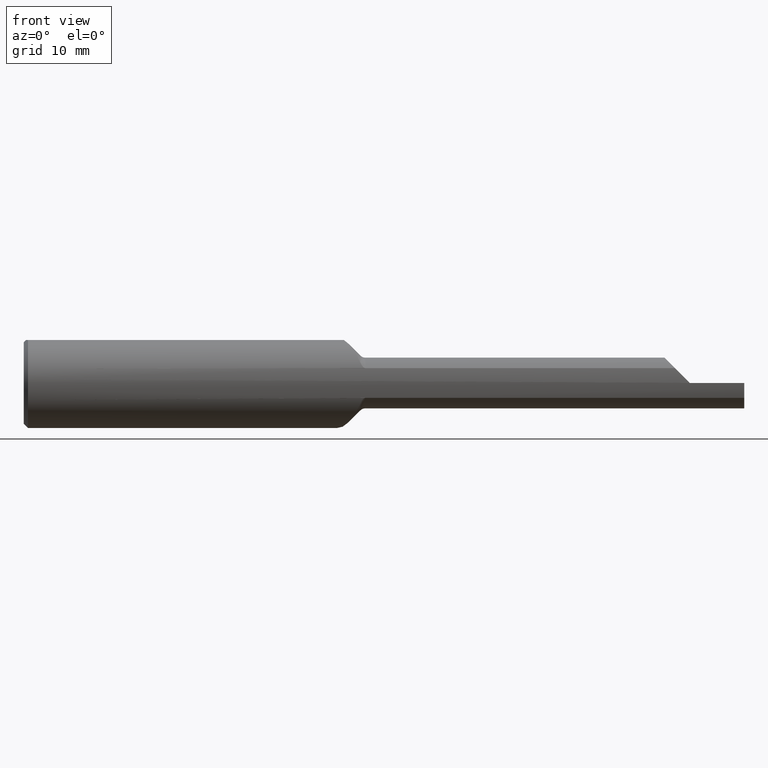
[diagram: clean part render]
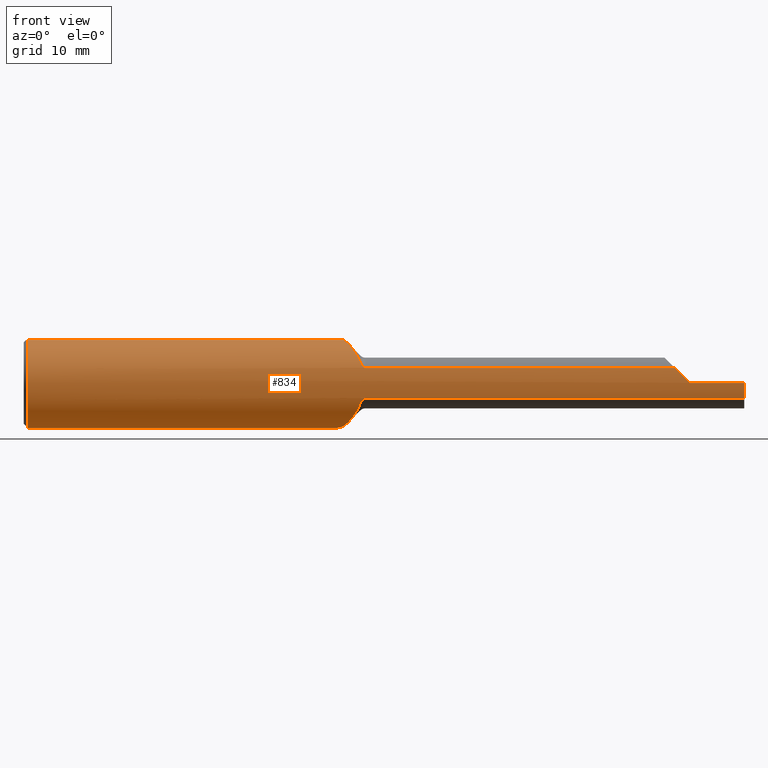
[diagram: same view with one face highlighted and labeled with its STEP entity id]
A machine part, front view. The second image highlights one B-rep face of the part: STEP entity #834.
In plain terms, the highlighted cylindrical surface (partial cylindrical patch) has radius 3.9649 mm, axis along (-1, -0, -0).
Its self-contained STEP definition (entity closure, byte-faithful):
#5 = CARTESIAN_POINT ( 'NONE',  ( 1.044222012668610589, 0.1163179709796762773, -0.1042486718442272170 ) ) ;
#15 = DIRECTION ( 'NONE',  ( 1.000000000000000000, 0.000000000000000000, 0.000000000000000000 ) ) ;
#22 = CARTESIAN_POINT ( 'NONE',  ( 0.01499999999999970281, 0.04622120725381385214, 0.1490999999999999270 ) ) ;
#24 = EDGE_CURVE ( 'NONE', #377, #806, #531, .T. ) ;
#35 = ORIENTED_EDGE ( 'NONE', *, *, #199, .T. ) ;
#46 = ORIENTED_EDGE ( 'NONE', *, *, #808, .F. ) ;
#52 = EDGE_CURVE ( 'NONE', #662, #599, #96, .T. ) ;
#58 = CARTESIAN_POINT ( 'NONE',  ( 1.130329930302383934, -0.08259003961828295659, -0.1326700696976158556 ) ) ;
#69 = CARTESIAN_POINT ( 'NONE',  ( 2.310000000000000053, -0.1560974054877275197, 0.0009000000000000394403 ) ) ;
#71 = CARTESIAN_POINT ( 'NONE',  ( 1.031141773156916353, 0.1550540061005035442, 0.02129797022049672445 ) ) ;
#74 = VECTOR ( 'NONE', #619, 39.37007874015748143 ) ;
#76 = CARTESIAN_POINT ( 'NONE',  ( 1.116812169148769129, -0.05789496149929983237, -0.1453281471598949215 ) ) ;
#88 = CARTESIAN_POINT ( 'NONE',  ( 1.043525812468697689, 0.1182995851173736374, 0.1024596034648371373 ) ) ;
#89 = VERTEX_POINT ( 'NONE', #627 ) ;
#96 = CIRCLE ( 'NONE', #792, 0.1560999999999999888 ) ;
#97 = CARTESIAN_POINT ( 'NONE',  ( 1.799000000000000155, -0.1472695137976348101, -0.05175809410911725444 ) ) ;
#103 = ORIENTED_EDGE ( 'NONE', *, *, #691, .F. ) ;
#104 = ORIENTED_EDGE ( 'NONE', *, *, #147, .F. ) ;
#107 = ORIENTED_EDGE ( 'NONE', *, *, #840, .T. ) ;
#116 = ORIENTED_EDGE ( 'NONE', *, *, #982, .F. ) ;
#124 = CARTESIAN_POINT ( 'NONE',  ( 1.126706199700792999, -0.07609999999999983444, 0.1362938002992066244 ) ) ;
#131 = CARTESIAN_POINT ( 'NONE',  ( 1.167677669529663786, -0.1384498903659923119, -0.07210296705160408604 ) ) ;
#132 = EDGE_LOOP ( 'NONE', ( #103, #915, #107, #388, #719, #752, #870, #116, #46, #35, #561, #622, #383, #104, #426, #488 ) ) ;
#147 = EDGE_CURVE ( 'NONE', #806, #1041, #175, .T. ) ;
#148 = CARTESIAN_POINT ( 'NONE',  ( 1.046899741308043419, 0.1086669464458838996, -0.1122013845914639069 ) ) ;
#150 = CARTESIAN_POINT ( 'NONE',  ( 1.161637665821881882, -0.1307140869438641884, 0.08566718864553422852 ) ) ;
#152 = CARTESIAN_POINT ( 'NONE',  ( 1.048311627111805588, 0.1046679885198928961, -0.1159372447474035089 ) ) ;
#158 = CARTESIAN_POINT ( 'NONE',  ( 1.067010607088304086, 0.05412176561188290769, -0.1467967206887914600 ) ) ;
#160 = CARTESIAN_POINT ( 'NONE',  ( 1.175408687754749826, -0.1449155519252132152, -0.05806097206929419774 ) ) ;
#163 = CARTESIAN_POINT ( 'NONE',  ( 1.070144386278151671, 0.04622120725381387990, 0.1490999999999999270 ) ) ;
#169 = CARTESIAN_POINT ( 'NONE',  ( 1.075032927891207191, 0.03388377653998491529, -0.1527427000066419183 ) ) ;
#175 = B_SPLINE_CURVE_WITH_KNOTS ( 'NONE', 3,
 ( #556, #880, #76, #964, #656, #886, #901, #403, #169, #158, #565, #979, #975, #152, #148, #5, #322, #485, #650, #480, #475, #244, #800, #646, #71, #891, #570, #250, #396, #88, #496, #414, #812, #897, #735, #163 ),
 .UNSPECIFIED., .F., .F.,
 ( 4, 2, 2, 2, 2, 2, 2, 2, 2, 2, 2, 2, 2, 2, 2, 2, 2, 4 ),
 ( 0.003110930994557954254, 0.003973681353903177338, 0.004836431713248399988, 0.005699182072593623506, 0.006561932431938847024, 0.007424682791284069674, 0.008287433150629292325, 0.008718808330301903650, 0.009150183509974514975, 0.01001293386931973936, 0.01087568422866496201, 0.01173843458801018640, 0.01260118494735540905, 0.01346393530670063343, 0.01432668566604585955, 0.01518943602539108220, 0.01605218638473630832, 0.01691493674408153097 ),
 .UNSPECIFIED. ) ;
#188 = CARTESIAN_POINT ( 'NONE',  ( 1.799000000000000155, -0.1472695137976348101, 0.05175809410911725444 ) ) ;
#193 = CYLINDRICAL_SURFACE ( 'NONE', #684, 0.1560999999999999888 ) ;
#199 = EDGE_CURVE ( 'NONE', #948, #595, #747, .T. ) ;
#208 = FACE_OUTER_BOUND ( 'NONE', #132, .T. ) ;
#211 = DIRECTION ( 'NONE',  ( 1.000000000000000000, 0.000000000000000000, 0.000000000000000000 ) ) ;
#214 = CARTESIAN_POINT ( 'NONE',  ( 0.01499999999999970281, 0.000000000000000000, 0.000000000000000000 ) ) ;
#236 = CARTESIAN_POINT ( 'NONE',  ( 1.167677669529664231, -0.1384498903659933666, 0.07210296705160368358 ) ) ;
#243 = CARTESIAN_POINT ( 'NONE',  ( 2.259141905890882374, -0.1472695137976348656, 0.05175809410911717812 ) ) ;
#244 = CARTESIAN_POINT ( 'NONE',  ( 1.031280914347883382, 0.1546295128890213255, -0.02417333993364567668 ) ) ;
#250 = CARTESIAN_POINT ( 'NONE',  ( 1.036986910343659973, 0.1374578401896124347, 0.07482343719080121469 ) ) ;
#253 = CARTESIAN_POINT ( 'NONE',  ( 1.185355339059327440, -0.1472695137976348101, -0.05175809410911725444 ) ) ;
#254 = CARTESIAN_POINT ( 'NONE',  ( 1.171394371802470413, -0.1424943515107292002, 0.06387577345490033642 ) ) ;
#265 = VERTEX_POINT ( 'NONE', #22 ) ;
#268 = CARTESIAN_POINT ( 'NONE',  ( 1.185355339059327440, -0.1472695137976348101, 0.05175809410911725444 ) ) ;
#272 = CARTESIAN_POINT ( 'NONE',  ( 1.182828737658168983, -0.1472695137976347823, 0.05175809410911725444 ) ) ;
#285 = CARTESIAN_POINT ( 'NONE',  ( 1.155216021855614894, -0.1221386240569962700, -0.09836120827692207413 ) ) ;
#288 = LINE ( 'NONE', #529, #453 ) ;
#304 = CARTESIAN_POINT ( 'NONE',  ( 1.180546948345776670, -0.1468138937758310947, -0.05306286877905338345 ) ) ;
#305 = DIRECTION ( 'NONE',  ( 1.000000000000000000, -0.000000000000000000, -0.000000000000000000 ) ) ;
#311 = EDGE_CURVE ( 'NONE', #1026, #89, #852, .T. ) ;
#322 = CARTESIAN_POINT ( 'NONE',  ( 1.042948678226318426, 0.1199920007254393767, -0.1000013436810296003 ) ) ;
#327 = CARTESIAN_POINT ( 'NONE',  ( 2.275525075440243405, -0.1530274035976015301, 0.03537492455975613237 ) ) ;
#343 = EDGE_CURVE ( 'NONE', #595, #611, #863, .T. ) ;
#346 = CARTESIAN_POINT ( 'NONE',  ( 2.500000000000000000, -0.04622120725381385214, 0.1490999999999999270 ) ) ;
#357 = CARTESIAN_POINT ( 'NONE',  ( 1.175397329852515993, -0.1449096853272189289, 0.05807563396208119399 ) ) ;
#375 = CARTESIAN_POINT ( 'NONE',  ( 1.133995743743775542, -0.08889203247636673355, -0.1285362261915931059 ) ) ;
#376 = EDGE_CURVE ( 'NONE', #265, #1041, #288, .T. ) ;
#377 = VERTEX_POINT ( 'NONE', #538 ) ;
#383 = ORIENTED_EDGE ( 'NONE', *, *, #376, .T. ) ;
#384 = CARTESIAN_POINT ( 'NONE',  ( 1.110935696970098752, -0.04622120725381386602, 0.1490999999999999270 ) ) ;
#387 = CARTESIAN_POINT ( 'NONE',  ( 2.500000000000000000, 0.000000000000000000, 0.000000000000000000 ) ) ;
#388 = ORIENTED_EDGE ( 'NONE', *, *, #545, .T. ) ;
#391 = CARTESIAN_POINT ( 'NONE',  ( 1.144773551662489952, -0.1063931868924056223, -0.1144730971797990743 ) ) ;
#394 = CARTESIAN_POINT ( 'NONE',  ( 1.182838898917944359, -0.1472695137977211854, -0.05175809410905147373 ) ) ;
#396 = CARTESIAN_POINT ( 'NONE',  ( 1.038920538248711889, 0.1317206507298689933, 0.08451291234133555264 ) ) ;
#403 = CARTESIAN_POINT ( 'NONE',  ( 1.079319089451871383, 0.02339435974748556302, -0.1546919824194771531 ) ) ;
#406 = VERTEX_POINT ( 'NONE', #124 ) ;
#414 = CARTESIAN_POINT ( 'NONE',  ( 1.052027254221677977, 0.09423401906602368872, 0.1249299457553747078 ) ) ;
#426 = ORIENTED_EDGE ( 'NONE', *, *, #24, .F. ) ;
#430 = DIRECTION ( 'NONE',  ( -1.000000000000000000, -0.000000000000000000, -0.000000000000000000 ) ) ;
#438 = CARTESIAN_POINT ( 'NONE',  ( 1.176886662688135354, -0.1456379114884257808, 0.05621074875361047746 ) ) ;
#453 = VECTOR ( 'NONE', #868, 39.37007874015748143 ) ;
#462 = CARTESIAN_POINT ( 'NONE',  ( 2.500000000000000000, 0.000000000000000000, 0.000000000000000000 ) ) ;
#473 = CARTESIAN_POINT ( 'NONE',  ( 1.185355339059327440, -0.1472695137976348101, 0.05175809410911725444 ) ) ;
#475 = CARTESIAN_POINT ( 'NONE',  ( 1.032957570238010936, 0.1495426852631769332, -0.04616949105331325659 ) ) ;
#480 = CARTESIAN_POINT ( 'NONE',  ( 1.034215880784539188, 0.1457367839870741533, -0.05704242602552626884 ) ) ;
#482 = VECTOR ( 'NONE', #919, 39.37007874015748143 ) ;
#485 = CARTESIAN_POINT ( 'NONE',  ( 1.039422301135399795, 0.1302433680280002948, -0.08676653150347680976 ) ) ;
#488 = ORIENTED_EDGE ( 'NONE', *, *, #988, .T. ) ;
#493 = EDGE_CURVE ( 'NONE', #990, #566, #922, .T. ) ;
#496 = CARTESIAN_POINT ( 'NONE',  ( 1.046141080797369893, 0.1107799545225837540, 0.1105230445280569046 ) ) ;
#523 = EDGE_CURVE ( 'NONE', #611, #265, #913, .T. ) ;
#529 = CARTESIAN_POINT ( 'NONE',  ( 2.500000000000000000, 0.04622120725381385214, 0.1490999999999999270 ) ) ;
#531 = B_SPLINE_CURVE_WITH_KNOTS ( 'NONE', 3,
 ( #131, #782, #285, #391, #1019, #375, #58, #1030 ),
 .UNSPECIFIED., .F., .F.,
 ( 4, 2, 2, 4 ),
 ( 0.0005916364990676545917, 0.001851283746812804531, 0.002481107370685379718, 0.003110930994557954687 ),
 .UNSPECIFIED. ) ;
#535 = B_SPLINE_CURVE_WITH_KNOTS ( 'NONE', 3,
 ( #384, #697, #706, #939 ),
 .UNSPECIFIED., .F., .F.,
 ( 4, 4 ),
 ( 7.382152500728708037E-07, 0.0009159196454856746326 ),
 .UNSPECIFIED. ) ;
#538 = CARTESIAN_POINT ( 'NONE',  ( 1.167677669529663786, -0.1384498903659923119, -0.07210296705160408604 ) ) ;
#545 = EDGE_CURVE ( 'NONE', #767, #990, #937, .T. ) ;
#547 = CARTESIAN_POINT ( 'NONE',  ( 1.167677669529663786, -0.1384498903659923119, -0.07210296705160408604 ) ) ;
#553 = CARTESIAN_POINT ( 'NONE',  ( 1.185355339059327440, -0.1472695137976348101, -0.05175809410911725444 ) ) ;
#556 = CARTESIAN_POINT ( 'NONE',  ( 1.126706199700792999, -0.07609999999999983444, -0.1362938002992066244 ) ) ;
#561 = ORIENTED_EDGE ( 'NONE', *, *, #343, .T. ) ;
#565 = CARTESIAN_POINT ( 'NONE',  ( 1.063225605245128325, 0.06398529392825012818, -0.1427964609321573097 ) ) ;
#566 = VERTEX_POINT ( 'NONE', #1039 ) ;
#570 = CARTESIAN_POINT ( 'NONE',  ( 1.033879873719948383, 0.1467490068820049287, 0.05438688777438995675 ) ) ;
#583 = LINE ( 'NONE', #188, #596 ) ;
#592 = LINE ( 'NONE', #97, #482 ) ;
#594 = CARTESIAN_POINT ( 'NONE',  ( 1.180555050587822841, -0.1468174166703278827, 0.05305370581216171250 ) ) ;
#595 = VERTEX_POINT ( 'NONE', #978 ) ;
#596 = VECTOR ( 'NONE', #15, 39.37007874015748143 ) ;
#599 = VERTEX_POINT ( 'NONE', #815 ) ;
#607 = CARTESIAN_POINT ( 'NONE',  ( 1.126706199700792999, -0.07609999999999983444, -0.1362938002992066244 ) ) ;
#611 = VERTEX_POINT ( 'NONE', #734 ) ;
#612 = DIRECTION ( 'NONE',  ( -1.000000000000000000, -0.000000000000000000, -0.000000000000000000 ) ) ;
#619 = DIRECTION ( 'NONE',  ( -1.000000000000000000, -0.000000000000000000, -0.000000000000000000 ) ) ;
#622 = ORIENTED_EDGE ( 'NONE', *, *, #523, .T. ) ;
#625 = DIRECTION ( 'NONE',  ( 0.000000000000000000, 0.000000000000000000, -1.000000000000000000 ) ) ;
#627 = CARTESIAN_POINT ( 'NONE',  ( 1.167677669529664231, -0.1384498903659933666, 0.07210296705160368358 ) ) ;
#645 = EDGE_CURVE ( 'NONE', #1026, #566, #583, .T. ) ;
#646 = CARTESIAN_POINT ( 'NONE',  ( 1.030767765083627108, 0.1561983557981439230, 0.01003359400291350782 ) ) ;
#650 = CARTESIAN_POINT ( 'NONE',  ( 1.037449876678831817, 0.1360829398674952839, -0.07729477376118278065 ) ) ;
#654 = CARTESIAN_POINT ( 'NONE',  ( 0.01499999999999970281, 0.000000000000000000, 0.000000000000000000 ) ) ;
#656 = CARTESIAN_POINT ( 'NONE',  ( 1.102112346281005850, -0.02822334644814733506, -0.1538709203994119146 ) ) ;
#659 = CARTESIAN_POINT ( 'NONE',  ( 2.500000000000000000, -0.1560999999999998500, -6.429183357567480113E-17 ) ) ;
#661 = B_SPLINE_CURVE_WITH_KNOTS ( 'NONE', 3,
 ( #547, #803, #893, #160, #871, #304, #394, #553 ),
 .UNSPECIFIED., .F., .F.,
 ( 4, 2, 2, 4 ),
 ( 2.168404344971008868E-19, 0.0003764161146858536100, 0.0005646241720287831526, 0.0007528322293717126410 ),
 .UNSPECIFIED. ) ;
#662 = VERTEX_POINT ( 'NONE', #659 ) ;
#681 = CARTESIAN_POINT ( 'NONE',  ( 1.169394866199429339, -0.1406008389657032176, 0.06797278198446653208 ) ) ;
#684 = AXIS2_PLACEMENT_3D ( 'NONE', #462, #612, #763 ) ;
#691 = EDGE_CURVE ( 'NONE', #599, #714, #592, .T. ) ;
#697 = CARTESIAN_POINT ( 'NONE',  ( 1.116189882256011900, -0.05672020887657770738, 0.1458452949029919177 ) ) ;
#698 = DIRECTION ( 'NONE',  ( 1.000000000000000000, -0.000000000000000000, -0.000000000000000000 ) ) ;
#706 = CARTESIAN_POINT ( 'NONE',  ( 1.121442227582330142, -0.06667231583844440701, 0.1415577724176694530 ) ) ;
#710 = CARTESIAN_POINT ( 'NONE',  ( 1.141317973311123835, -0.1011842763913276266, 0.1198081184973929653 ) ) ;
#714 = VERTEX_POINT ( 'NONE', #253 ) ;
#716 = CARTESIAN_POINT ( 'NONE',  ( 1.155130186158420003, -0.1217681345905091139, 0.09796714313659091178 ) ) ;
#719 = ORIENTED_EDGE ( 'NONE', *, *, #493, .T. ) ;
#722 = VECTOR ( 'NONE', #430, 39.37007874015748143 ) ;
#723 = DIRECTION ( 'NONE',  ( 0.000000000000000000, 0.000000000000000000, -1.000000000000000000 ) ) ;
#734 = CARTESIAN_POINT ( 'NONE',  ( 0.01499999999999970281, 0.000000000000000000, -0.1560999999999999888 ) ) ;
#735 = CARTESIAN_POINT ( 'NONE',  ( 1.066100644809369502, 0.05646901596201937129, 0.1459231650556712112 ) ) ;
#739 = AXIS2_PLACEMENT_3D ( 'NONE', #810, #895, #794 ) ;
#746 = CARTESIAN_POINT ( 'NONE',  ( 2.310000000000000053, -0.1560999999999999333, -6.429183357567478880E-17 ) ) ;
#747 = LINE ( 'NONE', #346, #722 ) ;
#749 = CARTESIAN_POINT ( 'NONE',  ( 1.070144386278151671, 0.04622120725381387990, 0.1490999999999999270 ) ) ;
#752 = ORIENTED_EDGE ( 'NONE', *, *, #645, .F. ) ;
#763 = DIRECTION ( 'NONE',  ( 0.000000000000000000, 0.000000000000000000, 1.000000000000000000 ) ) ;
#767 = VERTEX_POINT ( 'NONE', #746 ) ;
#782 = CARTESIAN_POINT ( 'NONE',  ( 1.161957913228202077, -0.1312853634227896527, -0.08586007040493325027 ) ) ;
#792 = AXIS2_PLACEMENT_3D ( 'NONE', #387, #211, #1035 ) ;
#794 = DIRECTION ( 'NONE',  ( 0.000000000000000000, 0.000000000000000000, 1.000000000000000000 ) ) ;
#798 = CARTESIAN_POINT ( 'NONE',  ( 1.126706199700792999, -0.07609999999999983444, 0.1362938002992066244 ) ) ;
#800 = CARTESIAN_POINT ( 'NONE',  ( 1.030836519003266671, 0.1559885724490455983, -0.01289048594769523839 ) ) ;
#803 = CARTESIAN_POINT ( 'NONE',  ( 1.169394273361946457, -0.1406000963815962901, -0.06797420787153307664 ) ) ;
#806 = VERTEX_POINT ( 'NONE', #607 ) ;
#808 = EDGE_CURVE ( 'NONE', #948, #406, #535, .T. ) ;
#810 = CARTESIAN_POINT ( 'NONE',  ( 2.310000000000000053, 0.000000000000000000, 0.000000000000000000 ) ) ;
#812 = CARTESIAN_POINT ( 'NONE',  ( 1.055320778875576071, 0.08515054058264751036, 0.1312731220610432459 ) ) ;
#815 = CARTESIAN_POINT ( 'NONE',  ( 2.500000000000000000, -0.1472695137976347546, -0.05175809410911733771 ) ) ;
#834 = ADVANCED_FACE ( 'NONE', ( #208 ), #193, .T. ) ;
#840 = EDGE_CURVE ( 'NONE', #662, #767, #926, .T. ) ;
#846 = CARTESIAN_POINT ( 'NONE',  ( 2.500000000000000000, -0.1560999999999999888, -6.429183357567480113E-17 ) ) ;
#852 = B_SPLINE_CURVE_WITH_KNOTS ( 'NONE', 3,
 ( #268, #272, #594, #438, #357, #254, #681, #1002 ),
 .UNSPECIFIED., .F., .F.,
 ( 4, 2, 2, 4 ),
 ( 0.000000000000000000, 0.0001888187950792403677, 0.0003776375901584807355, 0.0007552751803169675425 ),
 .UNSPECIFIED. ) ;
#863 = CIRCLE ( 'NONE', #994, 0.1560999999999999888 ) ;
#868 = DIRECTION ( 'NONE',  ( 1.000000000000000000, 0.000000000000000000, 0.000000000000000000 ) ) ;
#870 = ORIENTED_EDGE ( 'NONE', *, *, #311, .T. ) ;
#871 = CARTESIAN_POINT ( 'NONE',  ( 1.176913736631676421, -0.1456475296174915279, -0.05618527000029442664 ) ) ;
#880 = CARTESIAN_POINT ( 'NONE',  ( 1.121742310192378023, -0.06720975866797372633, -0.1412576898076212673 ) ) ;
#884 = CARTESIAN_POINT ( 'NONE',  ( 1.133946107127930647, -0.08906655055268117294, 0.1290538928720689760 ) ) ;
#886 = CARTESIAN_POINT ( 'NONE',  ( 1.092729287374496483, -0.007807587848976660187, -0.1562429486449703198 ) ) ;
#891 = CARTESIAN_POINT ( 'NONE',  ( 1.032687899053012393, 0.1503590421569866442, 0.04344544607852120210 ) ) ;
#893 = CARTESIAN_POINT ( 'NONE',  ( 1.171402990581743797, -0.1425015136695789442, -0.06385971556122833903 ) ) ;
#895 = DIRECTION ( 'NONE',  ( -1.000000000000000000, -0.000000000000000000, -0.000000000000000000 ) ) ;
#897 = CARTESIAN_POINT ( 'NONE',  ( 1.062342633379365076, 0.06631164368567278589, 0.1417251320298380246 ) ) ;
#901 = CARTESIAN_POINT ( 'NONE',  ( 1.088181447201821417, 0.002519520737367399264, -0.1564306795616403067 ) ) ;
#913 = CIRCLE ( 'NONE', #1042, 0.1560999999999999888 ) ;
#915 = ORIENTED_EDGE ( 'NONE', *, *, #52, .F. ) ;
#919 = DIRECTION ( 'NONE',  ( -1.000000000000000000, -0.000000000000000000, -0.000000000000000000 ) ) ;
#922 =( BOUNDED_CURVE ( )  B_SPLINE_CURVE ( 3, ( #1034, #973, #327, #243 ),
 .UNSPECIFIED., .F., .T. ) 
 B_SPLINE_CURVE_WITH_KNOTS ( ( 4, 4 ),
 ( 4.718154547241086405, 5.050356325447887151 ),
 .UNSPECIFIED. ) 
 CURVE ( )  GEOMETRIC_REPRESENTATION_ITEM ( )  RATIONAL_B_SPLINE_CURVE ( ( 1.000000000000000000, 0.9908246226888746122, 0.9908246226888746122, 1.000000000000000000 ) ) 
 REPRESENTATION_ITEM ( '' )  );
#926 = LINE ( 'NONE', #846, #74 ) ;
#937 = CIRCLE ( 'NONE', #739, 0.1560999999999999888 ) ;
#938 = B_SPLINE_CURVE_WITH_KNOTS ( 'NONE', 3,
 ( #798, #884, #710, #1033, #716, #150, #949, #236 ),
 .UNSPECIFIED., .F., .F.,
 ( 4, 2, 2, 4 ),
 ( 0.0009159196454856746326, 0.002174632397914933769, 0.002803988774129564151, 0.003433345150344194532 ),
 .UNSPECIFIED. ) ;
#939 = CARTESIAN_POINT ( 'NONE',  ( 1.126706199700792999, -0.07609999999999983444, 0.1362938002992066244 ) ) ;
#948 = VERTEX_POINT ( 'NONE', #961 ) ;
#949 = CARTESIAN_POINT ( 'NONE',  ( 1.164782188141721297, -0.1348230305271991003, 0.07906715129515236307 ) ) ;
#961 = CARTESIAN_POINT ( 'NONE',  ( 1.110935696970098752, -0.04622120725381386602, 0.1490999999999999270 ) ) ;
#964 = CARTESIAN_POINT ( 'NONE',  ( 1.106998906861133225, -0.03841099848002871298, -0.1516466027304954611 ) ) ;
#973 = CARTESIAN_POINT ( 'NONE',  ( 2.292634761300054613, -0.1559972839336175587, 0.01826523869994514659 ) ) ;
#975 = CARTESIAN_POINT ( 'NONE',  ( 1.052771044772178533, 0.09217447577905521494, -0.1264498563721426772 ) ) ;
#978 = CARTESIAN_POINT ( 'NONE',  ( 0.01499999999999393485, -0.04622120725382292822, 0.1490999999999999270 ) ) ;
#979 = CARTESIAN_POINT ( 'NONE',  ( 1.056062627151268973, 0.08312634177226699284, -0.1325705789283351532 ) ) ;
#982 = EDGE_CURVE ( 'NONE', #406, #89, #938, .T. ) ;
#988 = EDGE_CURVE ( 'NONE', #377, #714, #661, .T. ) ;
#990 = VERTEX_POINT ( 'NONE', #69 ) ;
#994 = AXIS2_PLACEMENT_3D ( 'NONE', #214, #698, #625 ) ;
#1002 = CARTESIAN_POINT ( 'NONE',  ( 1.167677669529664231, -0.1384498903659933666, 0.07210296705160368358 ) ) ;
#1019 = CARTESIAN_POINT ( 'NONE',  ( 1.141219447814276311, -0.1007947607389277495, -0.1194310306785390380 ) ) ;
#1026 = VERTEX_POINT ( 'NONE', #473 ) ;
#1030 = CARTESIAN_POINT ( 'NONE',  ( 1.126706199700792999, -0.07609999999999983444, -0.1362938002992066244 ) ) ;
#1033 = CARTESIAN_POINT ( 'NONE',  ( 1.151747287440679779, -0.1169076187231367359, 0.1037115082629028601 ) ) ;
#1034 = CARTESIAN_POINT ( 'NONE',  ( 2.310000000000000053, -0.1560974054877275197, 0.0009000000000000394403 ) ) ;
#1035 = DIRECTION ( 'NONE',  ( 0.000000000000000000, 0.000000000000000000, -1.000000000000000000 ) ) ;
#1039 = CARTESIAN_POINT ( 'NONE',  ( 2.259141905890882374, -0.1472695137976348656, 0.05175809410911717812 ) ) ;
#1041 = VERTEX_POINT ( 'NONE', #749 ) ;
#1042 = AXIS2_PLACEMENT_3D ( 'NONE', #654, #305, #723 ) ;